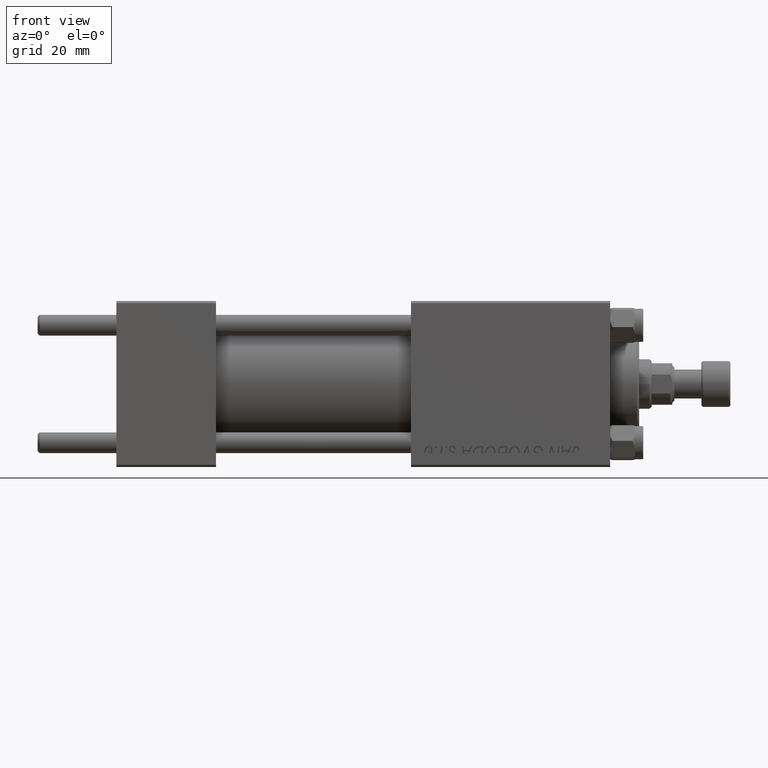
[diagram: clean part render]
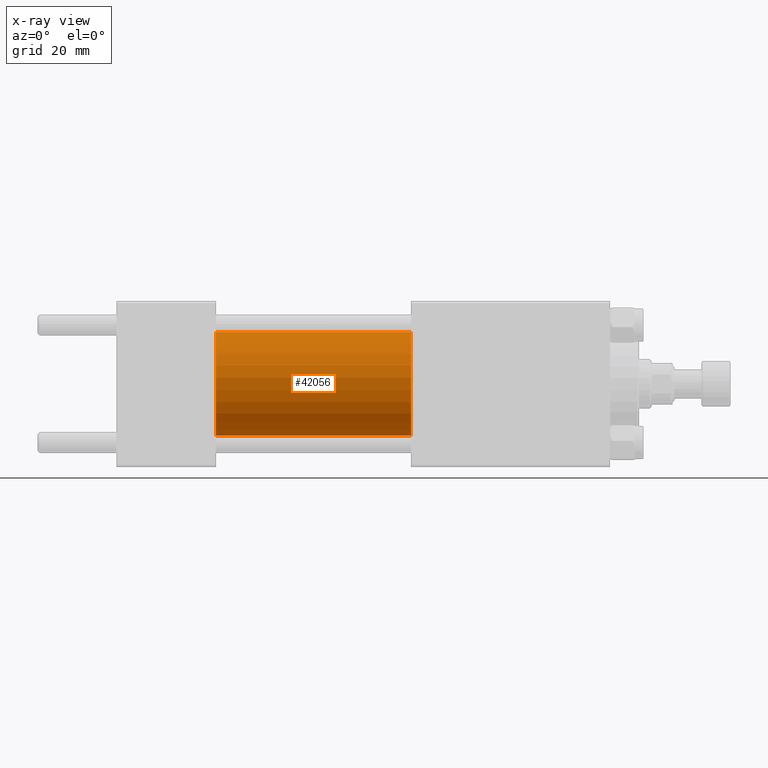
[diagram: x-ray — body ghosted, one internal face saturated and labeled with its STEP entity id]
A machine part, front view, then the same camera in x-ray: the body is ghosted and one INTERNAL B-rep face — a face not visible from any outside direction — is saturated and labeled: STEP entity #42056.
In plain terms, the highlighted cylindrical surface (partial cylindrical patch) has radius 12.5 mm, axis along (-1, -0, -0).
Its self-contained STEP definition (entity closure, byte-faithful):
#175 = CIRCLE ( 'NONE', #32709, 12.49999999999999645 ) ;
#1774 = DIRECTION ( 'NONE',  ( 0.000000000000000000, 0.000000000000000000, 1.000000000000000000 ) ) ;
#2177 = DIRECTION ( 'NONE',  ( 1.000000000000000000, 0.000000000000000000, 0.000000000000000000 ) ) ;
#4814 = EDGE_CURVE ( 'NONE', #31683, #28872, #34814, .T. ) ;
#7253 = EDGE_CURVE ( 'NONE', #31683, #43794, #175, .T. ) ;
#7488 = CARTESIAN_POINT ( 'NONE',  ( 24.00000000000000000, 1.530808498934191127E-15, -12.49999999999999645 ) ) ;
#11379 = VERTEX_POINT ( 'NONE', #7488 ) ;
#12498 = FACE_OUTER_BOUND ( 'NONE', #45702, .T. ) ;
#13526 = ORIENTED_EDGE ( 'NONE', *, *, #46712, .T. ) ;
#14046 = CARTESIAN_POINT ( 'NONE',  ( 71.00000000000001421, 1.530808498934191127E-15, -12.49999999999999645 ) ) ;
#15956 = DIRECTION ( 'NONE',  ( -1.000000000000000000, -0.000000000000000000, -0.000000000000000000 ) ) ;
#17047 = DIRECTION ( 'NONE',  ( -1.000000000000000000, -0.000000000000000000, -0.000000000000000000 ) ) ;
#20262 = CARTESIAN_POINT ( 'NONE',  ( 24.00000000000000000, 0.000000000000000000, 0.000000000000000000 ) ) ;
#21779 = DIRECTION ( 'NONE',  ( 0.000000000000000000, 0.000000000000000000, -1.000000000000000000 ) ) ;
#25811 = CARTESIAN_POINT ( 'NONE',  ( 71.00000000000001421, 0.000000000000000000, 0.000000000000000000 ) ) ;
#27165 = CARTESIAN_POINT ( 'NONE',  ( 71.00000000000001421, 0.000000000000000000, 12.49999999999999645 ) ) ;
#27565 = CARTESIAN_POINT ( 'NONE',  ( 71.00000000000001421, 0.000000000000000000, 12.49999999999999645 ) ) ;
#28872 = VERTEX_POINT ( 'NONE', #34313 ) ;
#31683 = VERTEX_POINT ( 'NONE', #27565 ) ;
#32709 = AXIS2_PLACEMENT_3D ( 'NONE', #25811, #32954, #36282 ) ;
#32954 = DIRECTION ( 'NONE',  ( 1.000000000000000000, 0.000000000000000000, 0.000000000000000000 ) ) ;
#34313 = CARTESIAN_POINT ( 'NONE',  ( 24.00000000000000000, 0.000000000000000000, 12.49999999999999645 ) ) ;
#34383 = VECTOR ( 'NONE', #37151, 1000.000000000000000 ) ;
#34814 = LINE ( 'NONE', #27165, #36680 ) ;
#36266 = ORIENTED_EDGE ( 'NONE', *, *, #4814, .F. ) ;
#36282 = DIRECTION ( 'NONE',  ( 0.000000000000000000, 0.000000000000000000, -1.000000000000000000 ) ) ;
#36680 = VECTOR ( 'NONE', #15956, 1000.000000000000000 ) ;
#37151 = DIRECTION ( 'NONE',  ( -1.000000000000000000, -0.000000000000000000, -0.000000000000000000 ) ) ;
#37488 = AXIS2_PLACEMENT_3D ( 'NONE', #20262, #2177, #21779 ) ;
#39491 = EDGE_CURVE ( 'NONE', #28872, #11379, #45647, .T. ) ;
#40249 = CARTESIAN_POINT ( 'NONE',  ( 71.00000000000001421, 0.000000000000000000, 0.000000000000000000 ) ) ;
#42056 = ADVANCED_FACE ( 'NONE', ( #12498 ), #43579, .F. ) ;
#43258 = AXIS2_PLACEMENT_3D ( 'NONE', #40249, #17047, #1774 ) ;
#43579 = CYLINDRICAL_SURFACE ( 'NONE', #43258, 12.49999999999999645 ) ;
#43794 = VERTEX_POINT ( 'NONE', #14046 ) ;
#44792 = LINE ( 'NONE', #49655, #34383 ) ;
#45647 = CIRCLE ( 'NONE', #37488, 12.49999999999999645 ) ;
#45702 = EDGE_LOOP ( 'NONE', ( #48023, #13526, #49804, #36266 ) ) ;
#46712 = EDGE_CURVE ( 'NONE', #43794, #11379, #44792, .T. ) ;
#48023 = ORIENTED_EDGE ( 'NONE', *, *, #7253, .T. ) ;
#49655 = CARTESIAN_POINT ( 'NONE',  ( 71.00000000000001421, 1.530808498934191127E-15, -12.49999999999999645 ) ) ;
#49804 = ORIENTED_EDGE ( 'NONE', *, *, #39491, .F. ) ;